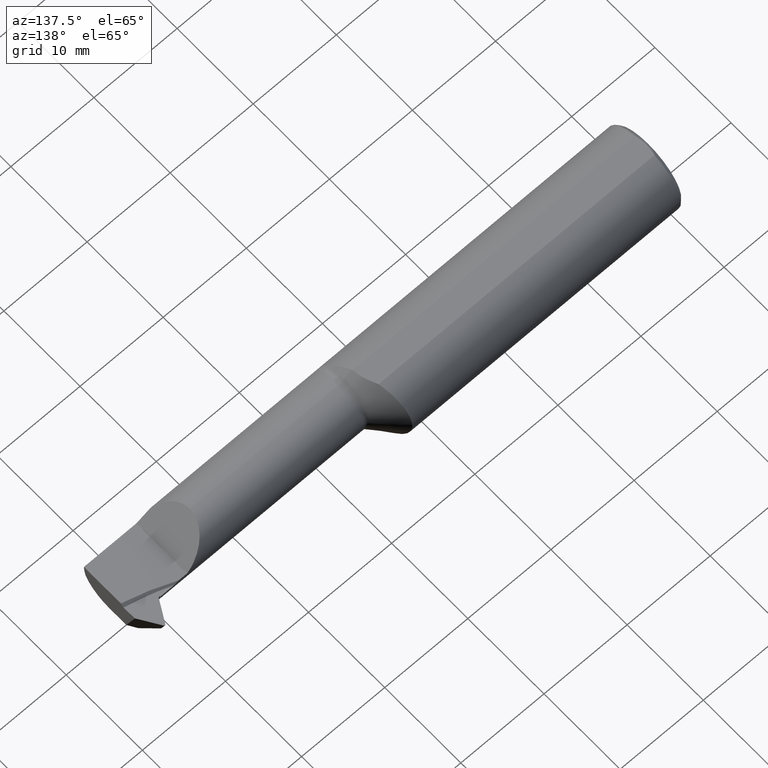
[diagram: clean part render]
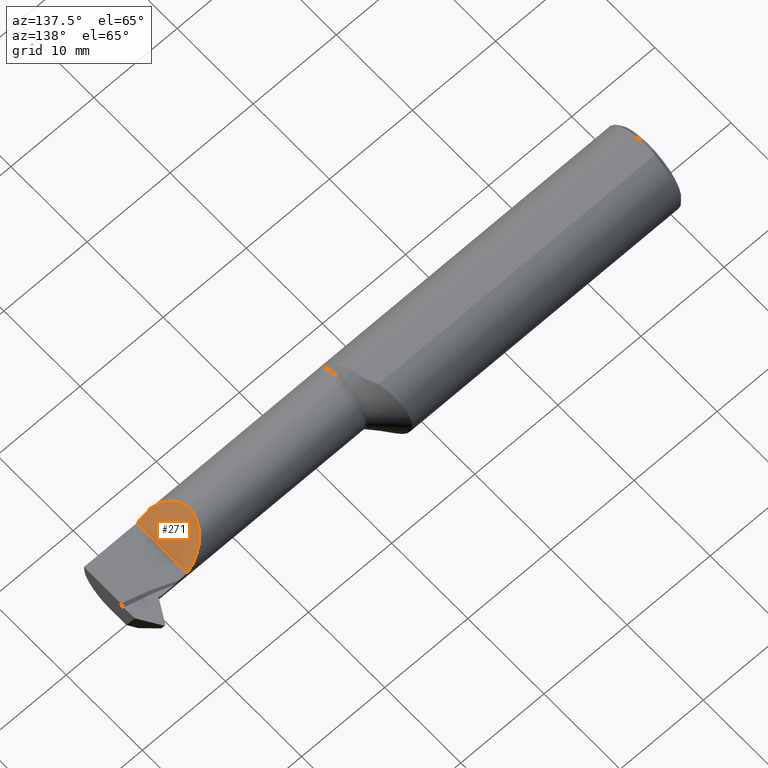
[diagram: same view with one face highlighted and labeled with its STEP entity id]
A machine part, auxiliary view. The second image highlights one B-rep face of the part: STEP entity #271.
In plain terms, the highlighted planar face has unit normal (-0.7071, 0, -0.7071).
Its self-contained STEP definition (entity closure, byte-faithful):
#3 = CARTESIAN_POINT ( 'NONE',  ( 2.230726762412658548, -0.1872820046412290718, 0.01992323758734154335 ) ) ;
#42 = VERTEX_POINT ( 'NONE', #381 ) ;
#74 = DIRECTION ( 'NONE',  ( -0.7071067811865441310, 0.000000000000000000, -0.7071067811865510144 ) ) ;
#87 = CARTESIAN_POINT ( 'NONE',  ( 2.193341453216400616, -0.1783697086546704724, 0.05730854678359917354 ) ) ;
#108 = VERTEX_POINT ( 'NONE', #265 ) ;
#128 = CARTESIAN_POINT ( 'NONE',  ( 2.250000000000000000, -0.1873488724278853934, 0.0006500000000000633960 ) ) ;
#138 =( BOUNDED_CURVE ( )  B_SPLINE_CURVE ( 3, ( #1072, #313, #653, #906 ),
 .UNSPECIFIED., .F., .F. ) 
 B_SPLINE_CURVE_WITH_KNOTS ( ( 4, 4 ),
 ( 0.000000000000000000, 1.565909089294454715 ),
 .UNSPECIFIED. ) 
 CURVE ( )  GEOMETRIC_REPRESENTATION_ITEM ( )  RATIONAL_B_SPLINE_CURVE ( ( 1.000000000000000000, 0.8058883784621434510, 0.8058883784621434510, 1.000000000000000000 ) ) 
 REPRESENTATION_ITEM ( '' )  );
#149 = ORIENTED_EDGE ( 'NONE', *, *, #160, .F. ) ;
#159 = LINE ( 'NONE', #917, #1043 ) ;
#160 = EDGE_CURVE ( 'NONE', #42, #108, #844, .T. ) ;
#169 = DIRECTION ( 'NONE',  ( -0.000000000000000000, 1.000000000000000000, -0.000000000000000000 ) ) ;
#264 = EDGE_CURVE ( 'NONE', #845, #752, #159, .T. ) ;
#265 = CARTESIAN_POINT ( 'NONE',  ( 2.117649999999998922, -0.05834999999999981868, 0.1330000000000000071 ) ) ;
#270 = EDGE_CURVE ( 'NONE', #108, #752, #138, .T. ) ;
#271 = ADVANCED_FACE ( 'NONE', ( #726 ), #575, .F. ) ;
#313 = CARTESIAN_POINT ( 'NONE',  ( 2.117649999999999366, 0.01925802714158484155, 0.1330000000000000349 ) ) ;
#336 = EDGE_CURVE ( 'NONE', #845, #42, #547, .T. ) ;
#363 = AXIS2_PLACEMENT_3D ( 'NONE', #490, #74, #581 ) ;
#381 = CARTESIAN_POINT ( 'NONE',  ( 2.193341453216400616, -0.1783697086546704724, 0.05730854678359917354 ) ) ;
#421 = EDGE_LOOP ( 'NONE', ( #149, #973, #676, #707 ) ) ;
#436 = CARTESIAN_POINT ( 'NONE',  ( 2.250000000000000000, 0.07464841164465103873, 0.0006500000000000630707 ) ) ;
#443 = CARTESIAN_POINT ( 'NONE',  ( 2.250000000000000000, -0.1873488724278853934, 0.0006500000000000633960 ) ) ;
#490 = CARTESIAN_POINT ( 'NONE',  ( 2.250000000000000000, -1.050000000000000044, 0.0006500000000000633960 ) ) ;
#547 =( BOUNDED_CURVE ( )  B_SPLINE_CURVE ( 3, ( #443, #3, #775, #87 ),
 .UNSPECIFIED., .F., .F. ) 
 B_SPLINE_CURVE_WITH_KNOTS ( ( 4, 4 ),
 ( 4.715858429565467524, 5.023262387692848385 ),
 .UNSPECIFIED. ) 
 CURVE ( )  GEOMETRIC_REPRESENTATION_ITEM ( )  RATIONAL_B_SPLINE_CURVE ( ( 1.000000000000000000, 0.9921407246595839169, 0.9921407246595839169, 1.000000000000000000 ) ) 
 REPRESENTATION_ITEM ( '' )  );
#566 = CARTESIAN_POINT ( 'NONE',  ( 2.117649999999998922, -0.05834999999999981868, 0.1330000000000000071 ) ) ;
#575 = PLANE ( 'NONE',  #363 ) ;
#581 = DIRECTION ( 'NONE',  ( -0.7071067811865509034, 0.000000000000000000, 0.7071067811865440200 ) ) ;
#646 = CARTESIAN_POINT ( 'NONE',  ( 2.193341453216400616, -0.1783697086546704724, 0.05730854678359917354 ) ) ;
#653 = CARTESIAN_POINT ( 'NONE',  ( 2.172392899693941004, 0.07426912429395904347, 0.07825710030605810552 ) ) ;
#676 = ORIENTED_EDGE ( 'NONE', *, *, #264, .T. ) ;
#707 = ORIENTED_EDGE ( 'NONE', *, *, #270, .F. ) ;
#726 = FACE_OUTER_BOUND ( 'NONE', #421, .T. ) ;
#731 = CARTESIAN_POINT ( 'NONE',  ( 2.145770520002824977, -0.1556549305389051951, 0.1048794799971742853 ) ) ;
#752 = VERTEX_POINT ( 'NONE', #436 ) ;
#775 = CARTESIAN_POINT ( 'NONE',  ( 2.211690972638299613, -0.1842652404698978397, 0.03895902736170015618 ) ) ;
#844 =( BOUNDED_CURVE ( )  B_SPLINE_CURVE ( 3, ( #646, #731, #1084, #566 ),
 .UNSPECIFIED., .F., .F. ) 
 B_SPLINE_CURVE_WITH_KNOTS ( ( 4, 4 ),
 ( 5.157869252308473484, 6.283185307179586232 ),
 .UNSPECIFIED. ) 
 CURVE ( )  GEOMETRIC_REPRESENTATION_ITEM ( )  RATIONAL_B_SPLINE_CURVE ( ( 1.000000000000000000, 0.8972268081433650844, 0.8972268081433650844, 1.000000000000000000 ) ) 
 REPRESENTATION_ITEM ( '' )  );
#845 = VERTEX_POINT ( 'NONE', #128 ) ;
#906 = CARTESIAN_POINT ( 'NONE',  ( 2.250000000000000000, 0.07464841164465103873, 0.0006500000000000630707 ) ) ;
#917 = CARTESIAN_POINT ( 'NONE',  ( 2.250000000000000000, -1.050000000000000044, 0.0006500000000000633960 ) ) ;
#973 = ORIENTED_EDGE ( 'NONE', *, *, #336, .F. ) ;
#1043 = VECTOR ( 'NONE', #169, 39.37007874015748143 ) ;
#1072 = CARTESIAN_POINT ( 'NONE',  ( 2.117649999999998922, -0.05834999999999981868, 0.1330000000000000071 ) ) ;
#1084 = CARTESIAN_POINT ( 'NONE',  ( 2.117649999999998922, -0.1110657930003794841, 0.1330000000000000071 ) ) ;